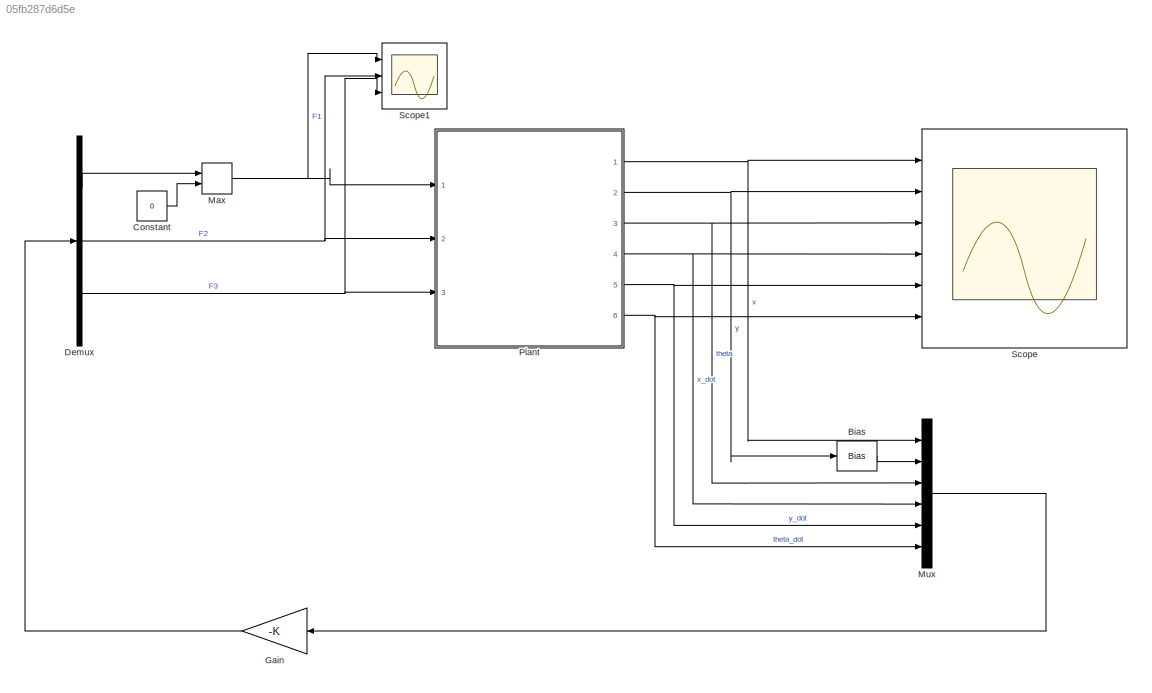
MODEL slx_05fb287d6d5e
KIND model
CONFIG AbsTol = auto
CONFIG EnableMultiTasking = off
CONFIG FixedStep = 0.0001
CONFIG InitFcn = model_init
CONFIG MaxStep = auto
CONFIG MinStep = auto
CONFIG RelTol = 1e-3
CONFIG SampleTimeConstraint = Unconstrained
CONFIG SolverName = FixedStepAuto
CONFIG StartTime = 0.0
CONFIG StopTime = 12
BLOCK [Bias] Bias
  Bias = -l/2
  SaturateOnIntegerOverflow = off
BLOCK [Constant] Constant
  Value = 0
BLOCK [Demux] Demux
  Outputs = 3
  Ports = [1, 3]
BLOCK [Gain] Gain
  Gain = -K
  Multiplication = Matrix(K*u)
  NameLocation = top
BLOCK [MinMax] Max
  Function = max
  Inputs = 2
  Ports = [2, 1]
BLOCK [Mux] Mux
  DisplayOption = bar
  Inputs = 6
  Ports = [6, 1]
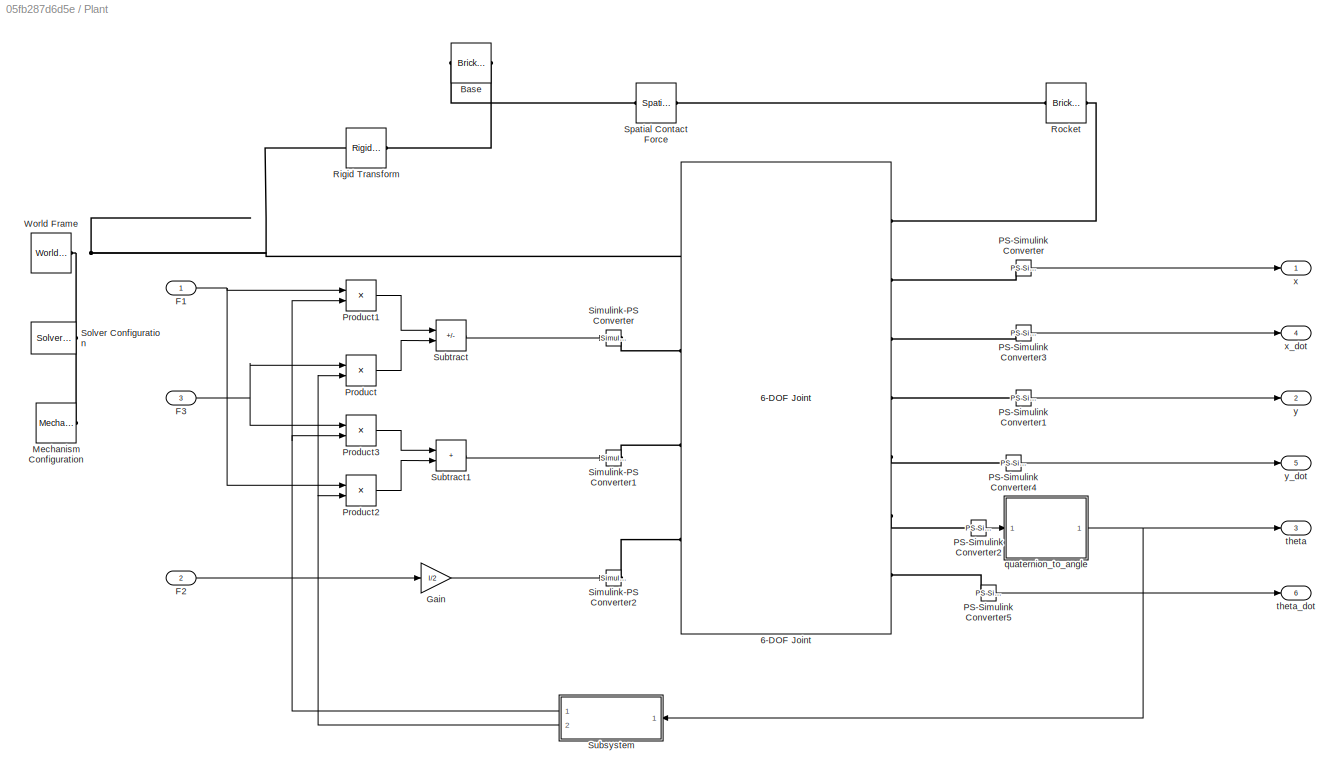
BLOCK [SubSystem] Plant
  Ports = [3, 6]
  RequestExecContextInheritance = off
BLOCK [Reference] Plant/6-DOF Joint  REF=sm_lib/Joints/6-DOF Joint
  Ports = [0, 0, 0, 0, 0, 4, 7]
  SourceBlock = sm_lib/Joints/6-DOF Joint
  SourceProductBaseCode = MS
  SourceType = 6-DOF Joint
BLOCK [Reference] Plant/Base  REF=sm_lib/Body Elements/Brick Solid
  Ports = [0, 0, 0, 0, 0, 1, 1]
  SourceBlock = sm_lib/Body Elements/Brick Solid
  SourceProductBaseCode = MS
  SourceType = Brick Solid
BLOCK [Inport] Plant/F1
BLOCK [Inport] Plant/F2
  Port = 2
BLOCK [Inport] Plant/F3
  Port = 3
BLOCK [Gain] Plant/Gain
  Gain = l/2
BLOCK [Reference] Plant/Mechanism Configuration  REF=sm_lib/Utilities/Mechanism
Configuration
  Ports = [0, 0, 0, 0, 0, 0, 1]
  SourceBlock = sm_lib/Utilities/Mechanism\nConfiguration
  SourceProductBaseCode = MS
  SourceType = Mechanism\nConfiguration
BLOCK [Reference] Plant/PS-Simulink Converter  REF=nesl_utility/PS-Simulink
Converter
  Ports = [0, 1, 0, 0, 0, 1]
  SourceBlock = nesl_utility/PS-Simulink\nConverter
  SourceProductBaseCode = SS,PW,VE
  SourceType = PS-Simulink\nConverter
BLOCK [Reference] Plant/PS-Simulink Converter1  REF=nesl_utility/PS-Simulink
Converter
  Ports = [0, 1, 0, 0, 0, 1]
  SourceBlock = nesl_utility/PS-Simulink\nConverter
  SourceProductBaseCode = SS,PW,VE
  SourceType = PS-Simulink\nConverter
BLOCK [Reference] Plant/PS-Simulink Converter2  REF=nesl_utility/PS-Simulink
Converter
  Ports = [0, 1, 0, 0, 0, 1]
  SourceBlock = nesl_utility/PS-Simulink\nConverter
  SourceProductBaseCode = SS,PW,VE
  SourceType = PS-Simulink\nConverter
BLOCK [Reference] Plant/PS-Simulink Converter3  REF=nesl_utility/PS-Simulink
Converter
  Ports = [0, 1, 0, 0, 0, 1]
  SourceBlock = nesl_utility/PS-Simulink\nConverter
  SourceProductBaseCode = SS,PW,VE
  SourceType = PS-Simulink\nConverter
BLOCK [Reference] Plant/PS-Simulink Converter4  REF=nesl_utility/PS-Simulink
Converter
  Ports = [0, 1, 0, 0, 0, 1]
  SourceBlock = nesl_utility/PS-Simulink\nConverter
  SourceProductBaseCode = SS,PW,VE
  SourceType = PS-Simulink\nConverter
BLOCK [Reference] Plant/PS-Simulink Converter5  REF=nesl_utility/PS-Simulink
Converter
  Ports = [0, 1, 0, 0, 0, 1]
  SourceBlock = nesl_utility/PS-Simulink\nConverter
  SourceProductBaseCode = SS,PW,VE
  SourceType = PS-Simulink\nConverter
BLOCK [Product] Plant/Product
  Ports = [2, 1]
BLOCK [Product] Plant/Product1
  Ports = [2, 1]
BLOCK [Product] Plant/Product2
  Ports = [2, 1]
BLOCK [Product] Plant/Product3
  Ports = [2, 1]
BLOCK [Reference] Plant/Rigid Transform  REF=sm_lib/Frames and
Transforms/Rigid
Transform
  Ports = [0, 0, 0, 0, 0, 1, 1]
  SourceBlock = sm_lib/Frames and\nTransforms/Rigid\nTransform
  SourceProductBaseCode = MS
  SourceType = Rigid\nTransform
BLOCK [Reference] Plant/Rocket  REF=sm_lib/Body Elements/Brick Solid
  Ports = [0, 0, 0, 0, 0, 1, 1]
  SourceBlock = sm_lib/Body Elements/Brick Solid
  SourceProductBaseCode = MS
  SourceType = Brick Solid
BLOCK [Reference] Plant/Simulink-PS Converter  REF=nesl_utility/Simulink-PS
Converter
  Ports = [1, 0, 0, 0, 0, 0, 1]
  SourceBlock = nesl_utility/Simulink-PS\nConverter
  SourceProductBaseCode = SS,PW,VE
  SourceType = Simulink-PS\nConverter
BLOCK [Reference] Plant/Simulink-PS Converter1  REF=nesl_utility/Simulink-PS
Converter
  Ports = [1, 0, 0, 0, 0, 0, 1]
  SourceBlock = nesl_utility/Simulink-PS\nConverter
  SourceProductBaseCode = SS,PW,VE
  SourceType = Simulink-PS\nConverter
BLOCK [Reference] Plant/Simulink-PS Converter2  REF=nesl_utility/Simulink-PS
Converter
  Ports = [1, 0, 0, 0, 0, 0, 1]
  SourceBlock = nesl_utility/Simulink-PS\nConverter
  SourceProductBaseCode = SS,PW,VE
  SourceType = Simulink-PS\nConverter
BLOCK [Reference] Plant/Solver Configuration  REF=nesl_utility/Solver
Configuration
  Ports = [0, 0, 0, 0, 0, 0, 1]
  SourceBlock = nesl_utility/Solver\nConfiguration
  SourceProductBaseCode = SS,PW,VE
  SourceType = Solver\nConfiguration
BLOCK [Reference] Plant/Spatial Contact Force  REF=sm_lib/Forces and
Torques/Spatial
Contact Force
  Ports = [0, 0, 0, 0, 0, 1, 1]
  SourceBlock = sm_lib/Forces and\nTorques/Spatial\nContact Force
  SourceProductBaseCode = MS
  SourceType = Spatial\nContact Force
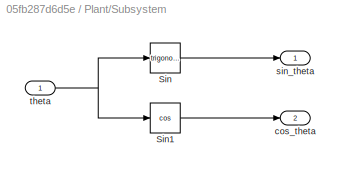
BLOCK [SubSystem] Plant/Subsystem
  NameLocation = top
  Ports = [1, 2]
  RequestExecContextInheritance = off
BLOCK [Trigonometry] Plant/Subsystem/Sin
  Ports = [1, 1]
BLOCK [Trigonometry] Plant/Subsystem/Sin1
  Operator = cos
  Ports = [1, 1]
BLOCK [Outport] Plant/Subsystem/cos_theta
  Port = 2
BLOCK [Outport] Plant/Subsystem/sin_theta
BLOCK [Inport] Plant/Subsystem/theta
BLOCK [Sum] Plant/Subtract
  IconShape = rectangular
  Inputs = -+
  Ports = [2, 1]
BLOCK [Sum] Plant/Subtract1
  IconShape = rectangular
  Ports = [2, 1]
BLOCK [Reference] Plant/World Frame  REF=sm_lib/Frames and
Transforms/World Frame
  Ports = [0, 0, 0, 0, 0, 0, 1]
  SourceBlock = sm_lib/Frames and\nTransforms/World Frame
  SourceProductBaseCode = MS
  SourceType = World Frame
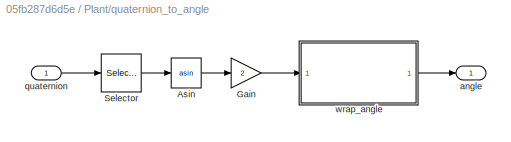
BLOCK [SubSystem] Plant/quaternion_to_angle
  Ports = [1, 1]
  RequestExecContextInheritance = off
BLOCK [Trigonometry] Plant/quaternion_to_angle/Asin
  Operator = asin
  Ports = [1, 1]
BLOCK [Gain] Plant/quaternion_to_angle/Gain
  Gain = 2
BLOCK [Selector] Plant/quaternion_to_angle/Selector
  IndexOptions = Index vector (dialog)
  Indices = [4]
  InputPortWidth = 4
  OutputSizes = 1
  Ports = [1, 1]
BLOCK [Outport] Plant/quaternion_to_angle/angle
BLOCK [Inport] Plant/quaternion_to_angle/quaternion
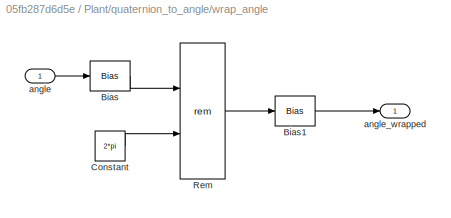
BLOCK [SubSystem] Plant/quaternion_to_angle/wrap_angle
  Ports = [1, 1]
  RequestExecContextInheritance = off
BLOCK [Bias] Plant/quaternion_to_angle/wrap_angle/Bias
  Bias = pi
  SaturateOnIntegerOverflow = off
BLOCK [Bias] Plant/quaternion_to_angle/wrap_angle/Bias1
  Bias = -pi
  SaturateOnIntegerOverflow = off
BLOCK [Constant] Plant/quaternion_to_angle/wrap_angle/Constant
  Value = 2*pi
BLOCK [Math] Plant/quaternion_to_angle/wrap_angle/Rem
  Operator = rem
  Ports = [2, 1]
BLOCK [Inport] Plant/quaternion_to_angle/wrap_angle/angle
BLOCK [Outport] Plant/quaternion_to_angle/wrap_angle/angle_wrapped
BLOCK [Outport] Plant/theta
  Port = 3
BLOCK [Outport] Plant/theta_dot
  Port = 6
BLOCK [Outport] Plant/x
BLOCK [Outport] Plant/x_dot
  Port = 4
BLOCK [Outport] Plant/y
  Port = 2
BLOCK [Outport] Plant/y_dot
  Port = 5
BLOCK [Scope] Scope
  Floating = off
  NumInputPorts = 6
  Ports = [6]
  ScopeSpecificationString = Simulink.scopes.TimeScopeBlockCfg('CurrentConfiguration', extmgr.ConfigurationSet(extmgr.Configuration('Core','General UI',true),extmgr.Configuration('Core','Source UI',true),extmgr.Configuration('Sources','WiredSimulink',true),extmgr.Configuration('Visuals','Time Domain',true,'SerializedDisplays',{struct('MinYLimReal','-0.96248','MaxYLimReal','1.21805','YLabelReal','','MinYLimMag','0.00000','MaxY...<+4791ch>
BLOCK [Scope] Scope1
  Floating = off
  NumInputPorts = 3
  Ports = [3]
  ScopeSpecificationString = Simulink.scopes.TimeScopeBlockCfg('CurrentConfiguration', extmgr.ConfigurationSet(extmgr.Configuration('Core','General UI',true),extmgr.Configuration('Core','Source UI',true),extmgr.Configuration('Sources','WiredSimulink',true,'DataLoggingVariableName','ScopeData1'),extmgr.Configuration('Visuals','Time Domain',true,'SerializedDisplays',{struct('MinYLimReal','-1.39202','MaxYLimReal','12.52815','YLa...<+2942ch>
LINE Bias:1 -> Mux:2
LINE Constant:1 -> Max:2
LINE Demux:1 -> Max:1
NET Demux:2 -> Plant:2, Scope1:2
NET Demux:3 -> Plant:3, Scope1:3
LINE Gain:1 -> Demux:1
NET Max:1 -> Plant:1, Scope1:1
LINE Mux:1 -> Gain:1
NET Plant/F1:1 -> Plant/Product1:1, Plant/Product2:1
LINE Plant/F2:1 -> Plant/Gain:1
NET Plant/F3:1 -> Plant/Product3:1, Plant/Product:1
LINE Plant/Gain:1 -> Plant/Simulink-PS Converter2:1
LINE Plant/PS-Simulink Converter1:1 -> Plant/y:1
LINE Plant/PS-Simulink Converter2:1 -> Plant/quaternion_to_angle:1
LINE Plant/PS-Simulink Converter3:1 -> Plant/x_dot:1
LINE Plant/PS-Simulink Converter4:1 -> Plant/y_dot:1
LINE Plant/PS-Simulink Converter5:1 -> Plant/theta_dot:1
LINE Plant/PS-Simulink Converter:1 -> Plant/x:1
LINE Plant/Product1:1 -> Plant/Subtract:1
LINE Plant/Product2:1 -> Plant/Subtract1:2
LINE Plant/Product3:1 -> Plant/Subtract1:1
LINE Plant/Product:1 -> Plant/Subtract:2
LINE Plant/Subsystem/Sin1:1 -> Plant/Subsystem/cos_theta:1
LINE Plant/Subsystem/Sin:1 -> Plant/Subsystem/sin_theta:1
NET Plant/Subsystem/theta:1 -> Plant/Subsystem/Sin1:1, Plant/Subsystem/Sin:1
NET Plant/Subsystem:1 -> Plant/Product1:2, Plant/Product3:2
NET Plant/Subsystem:2 -> Plant/Product2:2, Plant/Product:2
LINE Plant/Subtract1:1 -> Plant/Simulink-PS Converter1:1
LINE Plant/Subtract:1 -> Plant/Simulink-PS Converter:1
LINE Plant/quaternion_to_angle/Asin:1 -> Plant/quaternion_to_angle/Gain:1
LINE Plant/quaternion_to_angle/Gain:1 -> Plant/quaternion_to_angle/wrap_angle:1
LINE Plant/quaternion_to_angle/Selector:1 -> Plant/quaternion_to_angle/Asin:1
LINE Plant/quaternion_to_angle/quaternion:1 -> Plant/quaternion_to_angle/Selector:1
LINE Plant/quaternion_to_angle/wrap_angle/Bias1:1 -> Plant/quaternion_to_angle/wrap_angle/angle_wrapped:1
LINE Plant/quaternion_to_angle/wrap_angle/Bias:1 -> Plant/quaternion_to_angle/wrap_angle/Rem:1
LINE Plant/quaternion_to_angle/wrap_angle/Constant:1 -> Plant/quaternion_to_angle/wrap_angle/Rem:2
LINE Plant/quaternion_to_angle/wrap_angle/Rem:1 -> Plant/quaternion_to_angle/wrap_angle/Bias1:1
LINE Plant/quaternion_to_angle/wrap_angle/angle:1 -> Plant/quaternion_to_angle/wrap_angle/Bias:1
LINE Plant/quaternion_to_angle/wrap_angle:1 -> Plant/quaternion_to_angle/angle:1
NET Plant/quaternion_to_angle:1 -> Plant/Subsystem:1, Plant/theta:1
NET Plant:1 -> Mux:1, Scope:1
NET Plant:2 -> Bias:1, Scope:2
NET Plant:3 -> Mux:3, Scope:3
NET Plant:4 -> Mux:4, Scope:4
NET Plant:5 -> Mux:5, Scope:5
NET Plant:6 -> Mux:6, Scope:6
PNET net1: Plant/6-DOF Joint:LConn1 -- Plant/Mechanism Configuration:RConn1 -- Plant/Rigid Transform:LConn1 -- Plant/Solver Configuration:RConn1 -- Plant/World Frame:RConn1
PLINE Plant/6-DOF Joint:LConn2 -- Plant/Simulink-PS Converter:RConn1
PLINE Plant/6-DOF Joint:LConn3 -- Plant/Simulink-PS Converter1:RConn1
PLINE Plant/6-DOF Joint:LConn4 -- Plant/Simulink-PS Converter2:RConn1
PLINE Plant/6-DOF Joint:RConn1 -- Plant/Rocket:RConn1
PLINE Plant/6-DOF Joint:RConn2 -- Plant/PS-Simulink Converter:LConn1
PLINE Plant/6-DOF Joint:RConn3 -- Plant/PS-Simulink Converter3:LConn1
PLINE Plant/6-DOF Joint:RConn4 -- Plant/PS-Simulink Converter1:LConn1
PLINE Plant/6-DOF Joint:RConn5 -- Plant/PS-Simulink Converter4:LConn1
PLINE Plant/6-DOF Joint:RConn6 -- Plant/PS-Simulink Converter2:LConn1
PLINE Plant/6-DOF Joint:RConn7 -- Plant/PS-Simulink Converter5:LConn1
PLINE Plant/Base:LConn1 -- Plant/Spatial Contact Force:LConn1
PLINE Plant/Base:RConn1 -- Plant/Rigid Transform:RConn1
PLINE Plant/Rocket:LConn1 -- Plant/Spatial Contact Force:RConn1
note: NET lines group one-source signal fan-out (src -> all destinations, sorted); 1:1 wires keep LINE; PNET lines group multi-terminal physical nets as a canonical sorted terminal list (undirected conserving connections); 2-terminal nets keep the pairwise PLINE form
